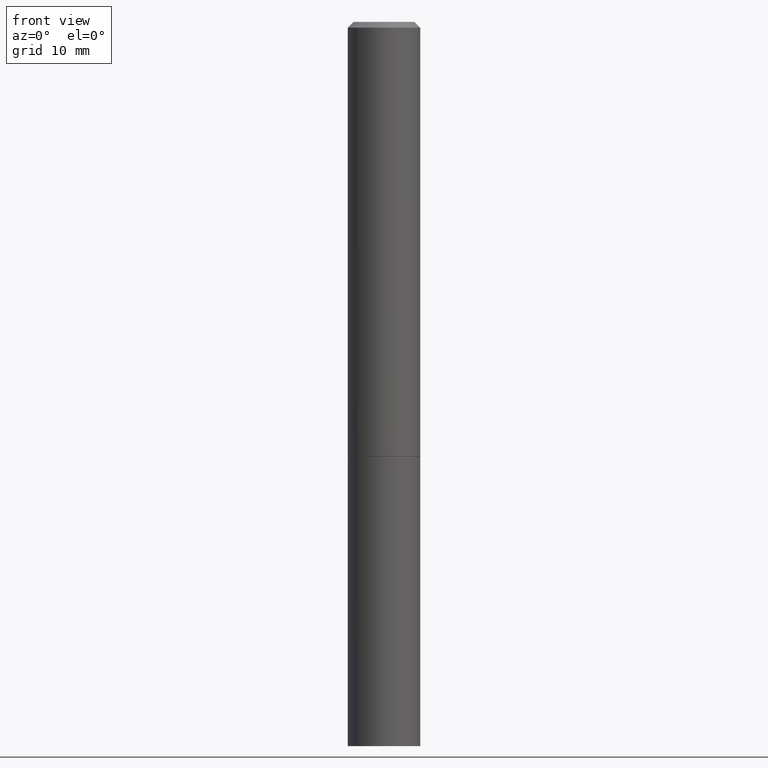
[diagram: clean part render]
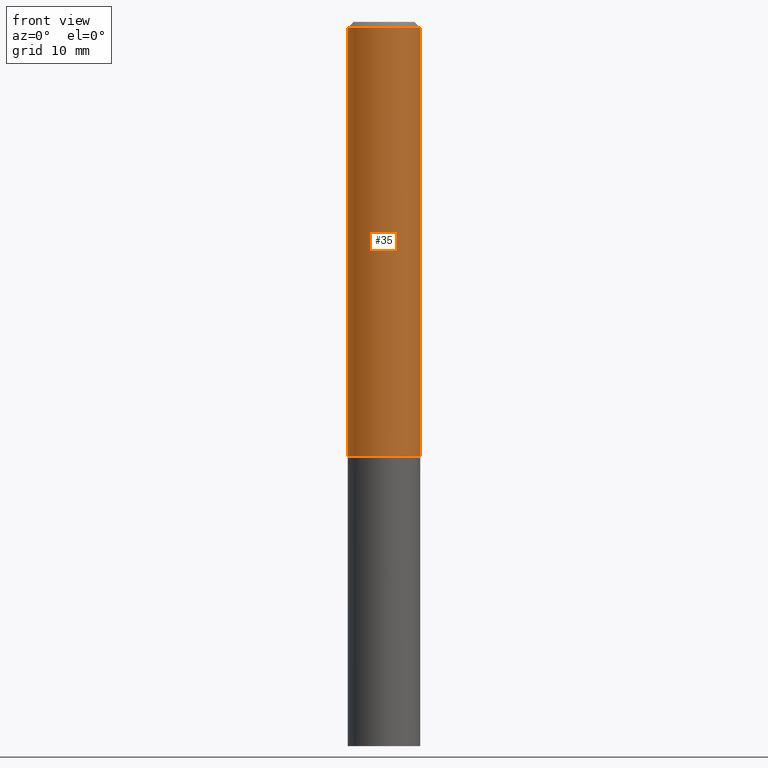
[diagram: same view with one face highlighted and labeled with its STEP entity id]
A machine part, front view. The second image highlights one B-rep face of the part: STEP entity #35.
In plain terms, the highlighted cylindrical surface (edge-blend (fillet) strip) has radius 3.175 mm, axis along (-0, 0, 1).
Its self-contained STEP definition (entity closure, byte-faithful):
#6 = ORIENTED_EDGE ( 'NONE', *, *, #209, .F. ) ;
#16 = VERTEX_POINT ( 'NONE', #129 ) ;
#24 = DIRECTION ( 'NONE',  ( -2.445468806185136877E-29, 3.491481338843145188E-15, 1.000000000000000000 ) ) ;
#35 = ADVANCED_FACE ( 'NONE', ( #298 ), #214, .T. ) ;
#58 = AXIS2_PLACEMENT_3D ( 'NONE', #301, #65, #128 ) ;
#60 = VERTEX_POINT ( 'NONE', #156 ) ;
#65 = DIRECTION ( 'NONE',  ( -2.445468806185136597E-29, 3.491481338843145583E-15, 1.000000000000000000 ) ) ;
#66 = ORIENTED_EDGE ( 'NONE', *, *, #271, .T. ) ;
#78 = DIRECTION ( 'NONE',  ( -2.445468806185136597E-29, 3.491481338843145583E-15, 1.000000000000000000 ) ) ;
#88 = AXIS2_PLACEMENT_3D ( 'NONE', #309, #78, #307 ) ;
#90 = VERTEX_POINT ( 'NONE', #149 ) ;
#107 = CIRCLE ( 'NONE', #88, 0.1249999999999998057 ) ;
#126 = VERTEX_POINT ( 'NONE', #308 ) ;
#128 = DIRECTION ( 'NONE',  ( 1.000000000000000000, -6.982962677686266711E-15, 4.876176775795935793E-29 ) ) ;
#129 = CARTESIAN_POINT ( 'NONE',  ( 0.1249999999999998057, -9.273918764983031658E-16, -0.02000000000000004552 ) ) ;
#130 = VECTOR ( 'NONE', #24, 39.37007874015748143 ) ;
#140 = DIRECTION ( 'NONE',  ( -2.445468806185136597E-29, 3.491481338843145583E-15, 1.000000000000000000 ) ) ;
#146 = AXIS2_PLACEMENT_3D ( 'NONE', #340, #140, #343 ) ;
#149 = CARTESIAN_POINT ( 'NONE',  ( -0.1249999999999998057, 8.030407079339189559E-16, -0.02000000000000004552 ) ) ;
#156 = CARTESIAN_POINT ( 'NONE',  ( 0.1250000000000000000, -6.106600861636658508E-15, -1.499000000000000110 ) ) ;
#157 = LINE ( 'NONE', #279, #191 ) ;
#183 = ORIENTED_EDGE ( 'NONE', *, *, #197, .F. ) ;
#191 = VECTOR ( 'NONE', #281, 39.37007874015748143 ) ;
#197 = EDGE_CURVE ( 'NONE', #90, #16, #107, .T. ) ;
#209 = EDGE_CURVE ( 'NONE', #126, #90, #331, .T. ) ;
#214 = CYLINDRICAL_SURFACE ( 'NONE', #58, 0.1249999999999999029 ) ;
#244 = ORIENTED_EDGE ( 'NONE', *, *, #365, .T. ) ;
#271 = EDGE_CURVE ( 'NONE', #60, #16, #157, .T. ) ;
#279 = CARTESIAN_POINT ( 'NONE',  ( 0.1249999999999999029, -8.728703347107826486E-16, 6.095220969744914837E-30 ) ) ;
#281 = DIRECTION ( 'NONE',  ( -2.445468806185136877E-29, 3.491481338843145188E-15, 1.000000000000000000 ) ) ;
#286 = CIRCLE ( 'NONE', #146, 0.1250000000000000000 ) ;
#298 = FACE_OUTER_BOUND ( 'NONE', #326, .T. ) ;
#301 = CARTESIAN_POINT ( 'NONE',  ( 0.000000000000000000, 0.000000000000000000, 0.000000000000000000 ) ) ;
#307 = DIRECTION ( 'NONE',  ( 1.000000000000000000, -6.982962677686267499E-15, 0.000000000000000000 ) ) ;
#308 = CARTESIAN_POINT ( 'NONE',  ( -0.1250000000000000278, -1.763601657151242227E-15, -1.499000000000000110 ) ) ;
#309 = CARTESIAN_POINT ( 'NONE',  ( 4.890937612370284544E-31, -6.982962677686307633E-17, -0.02000000000000004552 ) ) ;
#326 = EDGE_LOOP ( 'NONE', ( #6, #244, #66, #183 ) ) ;
#331 = LINE ( 'NONE', #332, #130 ) ;
#332 = CARTESIAN_POINT ( 'NONE',  ( -0.1249999999999999029, 8.881784197001245421E-16, -6.148668862818627323E-30 ) ) ;
#340 = CARTESIAN_POINT ( 'NONE',  ( 3.665757740471519853E-29, -5.233730526925875958E-15, -1.499000000000000110 ) ) ;
#343 = DIRECTION ( 'NONE',  ( 1.000000000000000000, -6.982962677686262766E-15, 0.000000000000000000 ) ) ;
#365 = EDGE_CURVE ( 'NONE', #126, #60, #286, .T. ) ;